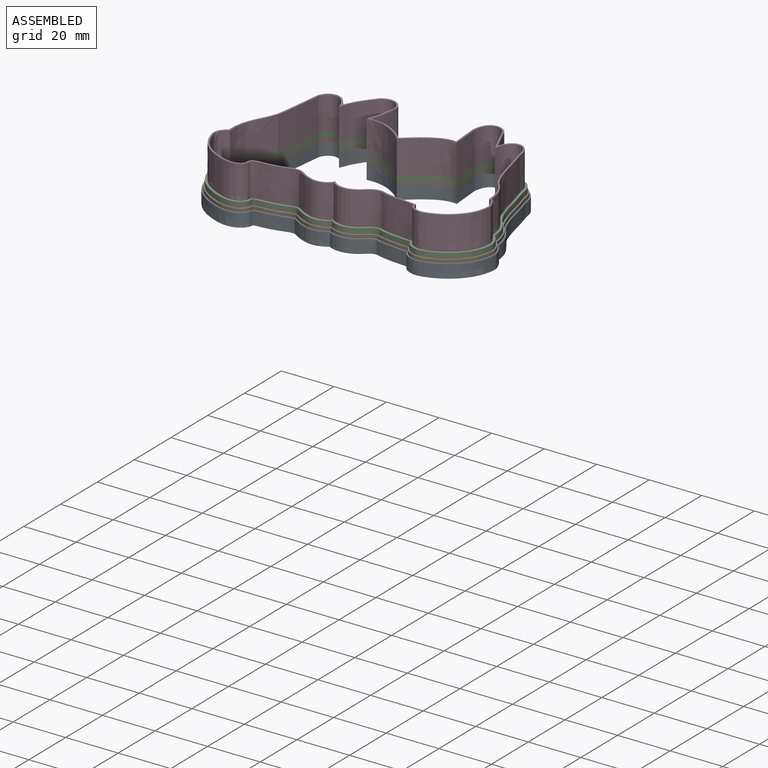
[diagram: assembled view]
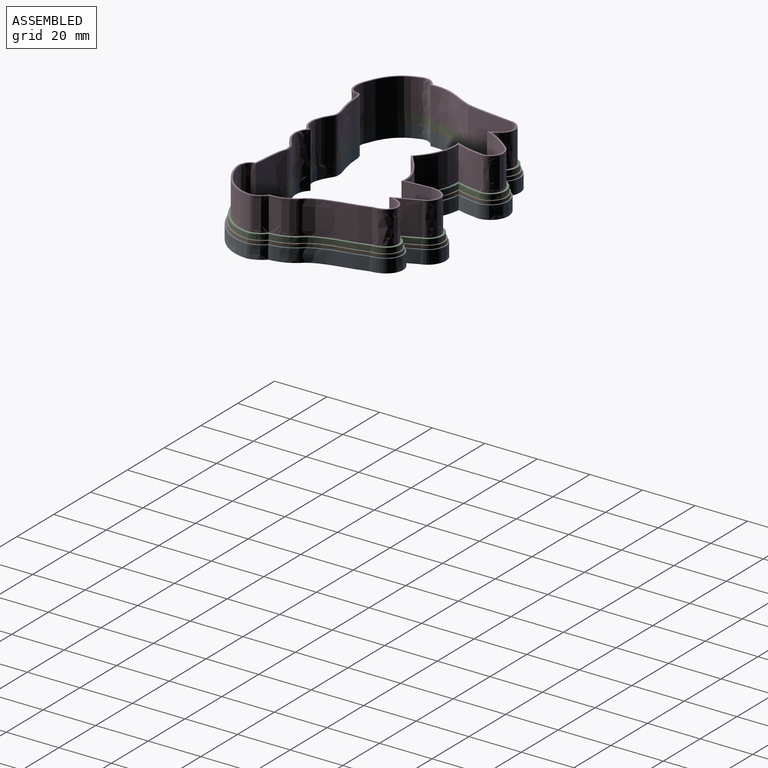
[diagram: assembled view, second angle]
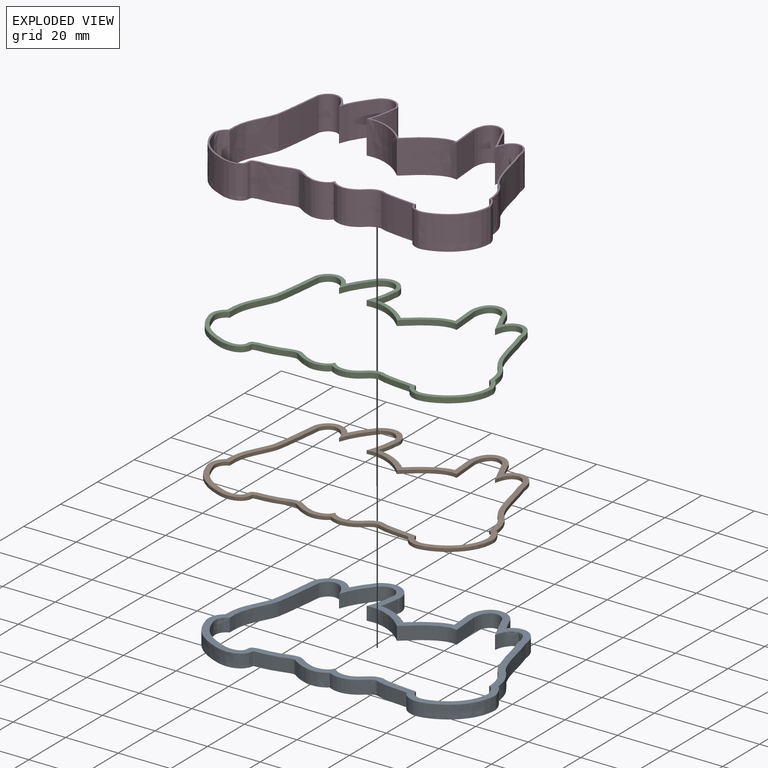
[diagram: exploded view]
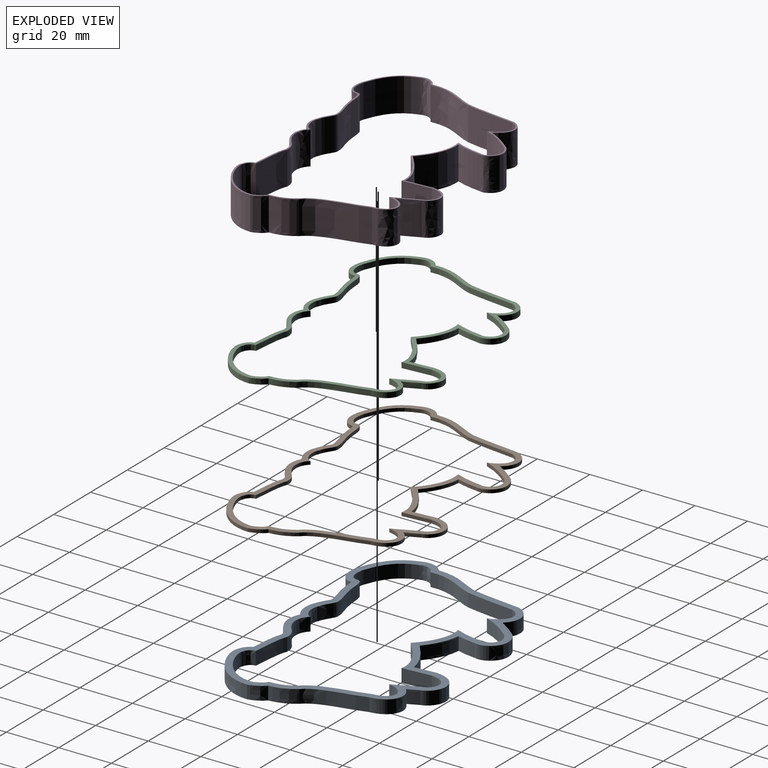
[diagram: exploded view, second angle]
ASSEMBLY  parts=4 mates=3
PART A: 58 faces, bbox 108.7x76.2x7.8 mm
  f0: plane 108.68x76.16mm, normal (0,0,1), area 876mm2, adj f2,f3,f4,f5,f6,f7,f8,f9
  f1: plane 108.68x76.16mm, normal (0,0,-1), area 876mm2, adj f2,f3,f4,f5,f6,f7,f8,f9
  f2: extruded ~17.57x5.77mm, area 95mm2, adj f0,f1,f3,f29
  f3: extruded ~8.54x5.08mm, area 48.2mm2, adj f0,f1,f2,f4
  f4: extruded ~14.42x13.29mm, area 104mm2, adj f0,f1,f3,f5
  f5: extruded ~10.38x5.08mm, area 65.7mm2, adj f0,f1,f4,f6
  f6: extruded ~5.08x0.55mm, area 2.9mm2, adj f0,f1,f5,f7
  f7: extruded ~13.59x5.08mm, area 70.3mm2, adj f0,f1,f6,f8
  f8: extruded ~5.45x5.08mm, area 31.2mm2, adj f0,f1,f7,f9
  f9: extruded ~9.1x5.08mm, area 48.8mm2, adj f0,f1,f8,f10
  f10: extruded ~9.98x5.08mm, area 53.4mm2, adj f0,f1,f9,f11
  f11: extruded ~5.36x5.08mm, area 32.1mm2, adj f0,f1,f10,f12
  f12: extruded ~12.6x5.08mm, area 64.9mm2, adj f0,f1,f11,f13
  f13: extruded ~5.08x3.83mm, area 26mm2, adj f0,f1,f12,f14
  f14: extruded ~20.07x17.85mm, area 151.4mm2, adj f0,f1,f13,f15
  f15: extruded ~5.87x5.08mm, area 34.1mm2, adj f0,f1,f14,f16
  f16: extruded ~9.46x5.08mm, area 52.2mm2, adj f0,f1,f15,f17
  f17: extruded ~21.38x7.51mm, area 116.3mm2, adj f0,f1,f16,f18
  f18: extruded ~11.44x7.99mm, area 85.8mm2, adj f0,f1,f17,f19
  f19: extruded ~5.08x4.25mm, area 23.7mm2, adj f0,f1,f18,f20
  f20: extruded ~13.46x8.31mm, area 105.9mm2, adj f0,f1,f19,f21
  f21: extruded ~8.24x5.08mm, area 42mm2, adj f0,f1,f20,f22
  f22: extruded ~14.06x7.58mm, area 82.3mm2, adj f0,f1,f21,f23
  f23: extruded ~12.67x5.94mm, area 72.3mm2, adj f0,f1,f22,f24
  f24: extruded ~7.04x5.08mm, area 36.5mm2, adj f0,f1,f23,f25
  f25: extruded ~12.03x8.2mm, area 90.4mm2, adj f0,f1,f24,f26
  f26: extruded ~7.73x5.56mm, area 48.5mm2, adj f0,f1,f25,f27
  f27: extruded ~5.08x0.03mm, area 0.2mm2, adj f0,f1,f26,f28
  f28: extruded ~11.92x5.08mm, area 76.1mm2, adj f0,f1,f27,f29
  f29: extruded ~18.63x5.08mm, area 95.5mm2, adj f0,f1,f2,f28
  f30: extruded ~18.3x5.69mm, area 98.7mm2, adj f0,f1,f31,f57
  f31: extruded ~6.3x5.08mm, area 38.1mm2, adj f0,f1,f30,f32
  f32: extruded ~12.8x11.75mm, area 92.2mm2, adj f0,f1,f31,f33
  f33: extruded ~7.07x5.08mm, area 42.3mm2, adj f0,f1,f32,f34
  f34: extruded ~5.08x2.67mm, area 21.2mm2, adj f0,f1,f33,f35
  f35: extruded ~13.75x5.08mm, area 71mm2, adj f0,f1,f34,f36
  f36: extruded ~6.63x5.08mm, area 37.3mm2, adj f0,f1,f35,f37
  f37: extruded ~7.71x5.08mm, area 45.5mm2, adj f0,f1,f36,f38
  f38: extruded ~9.1x5.08mm, area 50.8mm2, adj f0,f1,f37,f39
  f39: extruded ~7.22x5.08mm, area 41.9mm2, adj f0,f1,f38,f40
  f40: extruded ~14.04x5.08mm, area 72.3mm2, adj f0,f1,f39,f41
  f41: extruded ~5.08x3.07mm, area 22.6mm2, adj f0,f1,f40,f42
  f42: extruded ~16.62x15.1mm, area 125.5mm2, adj f0,f1,f41,f43
  f43: extruded ~5.08x4.55mm, area 28.7mm2, adj f0,f1,f42,f44
  f44: extruded ~9.3x5.08mm, area 50.6mm2, adj f0,f1,f43,f45
  f45: extruded ~22.55x8.11mm, area 123mm2, adj f0,f1,f44,f46
  f46: extruded ~8.9x5.97mm, area 82.7mm2, adj f0,f1,f45,f47
  f47: extruded ~9.62x5.08mm, area 53.6mm2, adj f0,f1,f46,f48
  f48: extruded ~8.51x5.79mm, area 70mm2, adj f0,f1,f47,f49
  f49: extruded ~10.96x5.08mm, area 55.9mm2, adj f0,f1,f48,f50
  f50: extruded ~16.91x8.54mm, area 99.1mm2, adj f0,f1,f49,f51
  f51: extruded ~16.22x6.91mm, area 92.8mm2, adj f0,f1,f50,f52
  f52: extruded ~10.29x5.08mm, area 54mm2, adj f0,f1,f51,f53
  f53: extruded ~7.71x5.09mm, area 57.2mm2, adj f0,f1,f52,f54
  f54: extruded ~11.67x7.12mm, area 69.9mm2, adj f0,f1,f53,f55
  f55: extruded ~5.08x4.15mm, area 24mm2, adj f0,f1,f54,f56
  f56: extruded ~7.52x5.08mm, area 48.3mm2, adj f0,f1,f55,f57
  f57: extruded ~18.59x5.08mm, area 95.3mm2, adj f0,f1,f30,f56
PART B: 59 faces, bbox 106.1x73.6x2.4 mm
  f0: plane 106.12x73.6mm, normal (0,0,1), area 700.6mm2, adj f2,f3,f4,f5,f6,f7,f8,f9
  f1: plane 106.12x73.6mm, normal (0,0,-1), area 700.6mm2, adj f2,f3,f4,f5,f6,f7,f8,f9
  f2: extruded ~1.27x0.36mm, area 0.5mm2, adj f0,f1,f6,f7
  f3: extruded ~17.69x5.75mm, area 23.9mm2, adj f0,f1,f4,f30
  f4: extruded ~8.11x2.72mm, area 11.6mm2, adj f0,f1,f3,f5
  f5: extruded ~14.09x12.98mm, area 25.4mm2, adj f0,f1,f4,f6
  f6: extruded ~9.72x4.45mm, area 15.3mm2, adj f0,f1,f2,f5
  f7: extruded ~1.27x0.96mm, area 1.3mm2, adj f0,f1,f2,f8
  f8: extruded ~13.49x2.26mm, area 17.4mm2, adj f0,f1,f7,f9
  f9: extruded ~5.8x2.85mm, area 8.4mm2, adj f0,f1,f8,f10
  f10: extruded ~8.86x1.99mm, area 12mm2, adj f0,f1,f9,f11
  f11: extruded ~9.77x1.6mm, area 13.1mm2, adj f0,f1,f10,f12
  f12: extruded ~5.73x3.18mm, area 8.5mm2, adj f0,f1,f11,f13
  f13: extruded ~12.85x1.91mm, area 16.5mm2, adj f0,f1,f12,f14
  f14: extruded ~3.66x3.15mm, area 6.4mm2, adj f0,f1,f13,f15
  f15: extruded ~19.38x17.3mm, area 36.6mm2, adj f0,f1,f14,f16
  f16: extruded ~5.66x3.06mm, area 8.3mm2, adj f0,f1,f15,f17
  f17: extruded ~9.38x3.48mm, area 12.9mm2, adj f0,f1,f16,f18
  f18: extruded ~21.61x7.63mm, area 29.4mm2, adj f0,f1,f17,f19
  f19: extruded ~11.07x7.59mm, area 21.1mm2, adj f0,f1,f18,f20
  f20: extruded ~5.05x2.27mm, area 7mm2, adj f0,f1,f19,f21
  f21: extruded ~12.47x7.81mm, area 24.7mm2, adj f0,f1,f20,f22
  f22: extruded ~8.71x1.27mm, area 11.1mm2, adj f0,f1,f21,f23
  f23: extruded ~14.62x7.79mm, area 21.4mm2, adj f0,f1,f22,f24
  f24: extruded ~13.33x6.15mm, area 19mm2, adj f0,f1,f23,f25
  f25: extruded ~7.61x1.52mm, area 9.9mm2, adj f0,f1,f24,f26
  f26: extruded ~11.17x7.59mm, area 20.9mm2, adj f0,f1,f25,f27
  f27: extruded ~8.27x5.83mm, area 12.9mm2, adj f0,f1,f26,f28
  f28: extruded ~1.27x0.61mm, area 1mm2, adj f0,f1,f27,f29
  f29: extruded ~11.04x4.59mm, area 17.7mm2, adj f0,f1,f28,f30
  f30: extruded ~18.62x2.46mm, area 23.9mm2, adj f0,f1,f3,f29
  f31: extruded ~18.3x5.69mm, area 24.7mm2, adj f0,f1,f32,f58
  f32: extruded ~6.3x2.77mm, area 9.5mm2, adj f0,f1,f31,f33
  f33: extruded ~12.8x11.75mm, area 23mm2, adj f0,f1,f32,f34
  f34: extruded ~7.07x2.54mm, area 10.6mm2, adj f0,f1,f33,f35
  f35: extruded ~2.67x2.47mm, area 5.3mm2, adj f0,f1,f34,f36
  f36: extruded ~13.75x2.28mm, area 17.8mm2, adj f0,f1,f35,f37
  f37: extruded ~6.63x2.98mm, area 9.3mm2, adj f0,f1,f36,f38
  f38: extruded ~7.71x2.92mm, area 11.4mm2, adj f0,f1,f37,f39
  f39: extruded ~9.1x2.19mm, area 12.7mm2, adj f0,f1,f38,f40
  f40: extruded ~7.22x3.49mm, area 10.5mm2, adj f0,f1,f39,f41
  f41: extruded ~14.04x2.08mm, area 18.1mm2, adj f0,f1,f40,f42
  f42: extruded ~3.07x2.77mm, area 5.6mm2, adj f0,f1,f41,f43
  f43: extruded ~16.62x15.1mm, area 31.4mm2, adj f0,f1,f42,f44
  f44: extruded ~4.55x2.97mm, area 7.2mm2, adj f0,f1,f43,f45
  f45: extruded ~9.3x3.07mm, area 12.6mm2, adj f0,f1,f44,f46
  f46: extruded ~22.55x8.11mm, area 30.8mm2, adj f0,f1,f45,f47
  f47: extruded ~8.9x5.97mm, area 20.7mm2, adj f0,f1,f46,f48
  f48: extruded ~9.62x4.35mm, area 13.4mm2, adj f0,f1,f47,f49
  f49: extruded ~8.51x5.79mm, area 17.5mm2, adj f0,f1,f48,f50
  f50: extruded ~10.96x1.27mm, area 14mm2, adj f0,f1,f49,f51
  f51: extruded ~16.91x8.54mm, area 24.8mm2, adj f0,f1,f50,f52
  f52: extruded ~16.22x6.91mm, area 23.2mm2, adj f0,f1,f51,f53
  f53: extruded ~10.29x2.47mm, area 13.5mm2, adj f0,f1,f52,f54
  f54: extruded ~7.71x5.09mm, area 14.3mm2, adj f0,f1,f53,f55
  f55: extruded ~11.67x7.12mm, area 17.5mm2, adj f0,f1,f54,f56
  f56: extruded ~4.15x2.18mm, area 6mm2, adj f0,f1,f55,f57
  f57: extruded ~7.52x3.09mm, area 12.1mm2, adj f0,f1,f56,f58
  f58: extruded ~18.59x2.47mm, area 23.8mm2, adj f0,f1,f31,f57
PART C: 59 faces, bbox 105.1x72.6x3.2 mm
  f0: plane 105.13x72.61mm, normal (0,0,1), area 525.6mm2, adj f2,f3,f4,f5,f6,f7,f8,f9
  f1: plane 105.13x72.61mm, normal (0,0,-1), area 525.6mm2, adj f2,f3,f4,f5,f6,f7,f8,f9
  f2: extruded ~2.03x0.72mm, area 1.5mm2, adj f0,f1,f6,f7
  f3: extruded ~17.82x5.74mm, area 38.5mm2, adj f0,f1,f4,f30
  f4: extruded ~7.68x2.72mm, area 17.7mm2, adj f0,f1,f3,f5
  f5: extruded ~13.77x12.67mm, area 39.7mm2, adj f0,f1,f4,f6
  f6: extruded ~9.06x3.97mm, area 22.5mm2, adj f0,f1,f2,f5
  f7: extruded ~2.03x1.34mm, area 2.8mm2, adj f0,f1,f2,f8
  f8: extruded ~13.55x2.27mm, area 28mm2, adj f0,f1,f7,f9
  f9: extruded ~6.01x2.88mm, area 13.6mm2, adj f0,f1,f8,f10
  f10: extruded ~8.61x2.13mm, area 18.8mm2, adj f0,f1,f9,f11
  f11: extruded ~9.57x2.03mm, area 20.6mm2, adj f0,f1,f10,f12
  f12: extruded ~6.09x3.26mm, area 14.4mm2, adj f0,f1,f11,f13
  f13: extruded ~13.11x2.03mm, area 27mm2, adj f0,f1,f12,f14
  f14: extruded ~3.47x3.14mm, area 9.9mm2, adj f0,f1,f13,f15
  f15: extruded ~18.7x16.75mm, area 56.4mm2, adj f0,f1,f14,f16
  f16: extruded ~5.43x3.04mm, area 12.9mm2, adj f0,f1,f15,f17
  f17: extruded ~9.31x3.38mm, area 20.4mm2, adj f0,f1,f16,f18
  f18: extruded ~21.84x7.75mm, area 47.6mm2, adj f0,f1,f17,f19
  f19: extruded ~10.65x7.18mm, area 33.3mm2, adj f0,f1,f18,f20
  f20: extruded ~5.97x2.66mm, area 13.3mm2, adj f0,f1,f19,f21
  f21: extruded ~11.48x7.3mm, area 36.6mm2, adj f0,f1,f20,f22
  f22: extruded ~9.21x2.03mm, area 18.8mm2, adj f0,f1,f21,f23
  f23: extruded ~15.18x7.97mm, area 35.5mm2, adj f0,f1,f22,f24
  f24: extruded ~14.01x6.34mm, area 32mm2, adj f0,f1,f23,f25
  f25: extruded ~8.21x2.03mm, area 17.1mm2, adj f0,f1,f24,f26
  f26: extruded ~10.3x6.98mm, area 30.8mm2, adj f0,f1,f25,f27
  f27: extruded ~8.89x6.12mm, area 22mm2, adj f0,f1,f26,f28
  f28: extruded ~2.03x1.27mm, area 3.2mm2, adj f0,f1,f27,f29
  f29: extruded ~10.16x4.21mm, area 26.1mm2, adj f0,f1,f28,f30
  f30: extruded ~18.61x2.47mm, area 38.2mm2, adj f0,f1,f3,f29
  f31: extruded ~18.3x5.69mm, area 39.5mm2, adj f0,f1,f32,f58
  f32: extruded ~6.3x2.77mm, area 15.3mm2, adj f0,f1,f31,f33
  f33: extruded ~12.8x11.75mm, area 36.9mm2, adj f0,f1,f32,f34
  f34: extruded ~7.07x2.54mm, area 16.9mm2, adj f0,f1,f33,f35
  f35: extruded ~2.67x2.47mm, area 8.5mm2, adj f0,f1,f34,f36
  f36: extruded ~13.75x2.28mm, area 28.4mm2, adj f0,f1,f35,f37
  f37: extruded ~6.63x2.98mm, area 14.9mm2, adj f0,f1,f36,f38
  f38: extruded ~7.71x2.92mm, area 18.2mm2, adj f0,f1,f37,f39
  f39: extruded ~9.1x2.19mm, area 20.3mm2, adj f0,f1,f38,f40
  f40: extruded ~7.22x3.49mm, area 16.8mm2, adj f0,f1,f39,f41
  f41: extruded ~14.04x2.08mm, area 28.9mm2, adj f0,f1,f40,f42
  f42: extruded ~3.07x2.77mm, area 9mm2, adj f0,f1,f41,f43
  f43: extruded ~16.62x15.1mm, area 50.2mm2, adj f0,f1,f42,f44
  f44: extruded ~4.55x2.97mm, area 11.5mm2, adj f0,f1,f43,f45
  f45: extruded ~9.3x3.07mm, area 20.2mm2, adj f0,f1,f44,f46
  f46: extruded ~22.55x8.11mm, area 49.2mm2, adj f0,f1,f45,f47
  f47: extruded ~8.9x5.97mm, area 33.1mm2, adj f0,f1,f46,f48
  f48: extruded ~9.62x4.35mm, area 21.5mm2, adj f0,f1,f47,f49
  f49: extruded ~8.51x5.79mm, area 28mm2, adj f0,f1,f48,f50
  f50: extruded ~10.96x2.03mm, area 22.3mm2, adj f0,f1,f49,f51
  f51: extruded ~16.91x8.54mm, area 39.6mm2, adj f0,f1,f50,f52
  f52: extruded ~16.22x6.91mm, area 37.1mm2, adj f0,f1,f51,f53
  f53: extruded ~10.29x2.47mm, area 21.6mm2, adj f0,f1,f52,f54
  f54: extruded ~7.71x5.09mm, area 22.9mm2, adj f0,f1,f53,f55
  f55: extruded ~11.67x7.12mm, area 28mm2, adj f0,f1,f54,f56
  f56: extruded ~4.15x2.18mm, area 9.6mm2, adj f0,f1,f55,f57
  f57: extruded ~7.52x3.09mm, area 19.3mm2, adj f0,f1,f56,f58
  f58: extruded ~18.59x2.47mm, area 38.1mm2, adj f0,f1,f31,f57
PART D: 58 faces, bbox 107.7x75.8x18.3 mm
  f0: plane 107.74x75.83mm, normal (0,0,1), area 219.6mm2, adj f2,f3,f4,f5,f6,f7,f8,f9
  f1: plane 107.74x75.83mm, normal (0,0,-1), area 219.6mm2, adj f2,f3,f4,f5,f6,f7,f8,f9
  f2: extruded ~18.08x12.7mm, area 243.9mm2, adj f0,f1,f3,f29
  f3: extruded ~12.7x6.89mm, area 101.8mm2, adj f0,f1,f2,f4
  f4: extruded ~13.2x12.7mm, area 237.8mm2, adj f0,f1,f3,f5
  f5: extruded ~12.7x7.9mm, area 120.2mm2, adj f0,f1,f4,f6
  f6: extruded ~12.7x2.14mm, area 42.1mm2, adj f0,f1,f5,f7
  f7: extruded ~13.66x12.7mm, area 176.6mm2, adj f0,f1,f6,f8
  f8: extruded ~12.7x6.36mm, area 90mm2, adj f0,f1,f7,f9
  f9: extruded ~12.7x8.13mm, area 114.5mm2, adj f0,f1,f8,f10
  f10: extruded ~12.7x9.25mm, area 126.5mm2, adj f0,f1,f9,f11
  f11: extruded ~12.7x6.75mm, area 98.6mm2, adj f0,f1,f10,f12
  f12: extruded ~13.63x12.7mm, area 175.4mm2, adj f0,f1,f11,f13
  f13: extruded ~12.7x3.1mm, area 58.8mm2, adj f0,f1,f12,f14
  f14: extruded ~17.49x15.79mm, area 330.2mm2, adj f0,f1,f13,f15
  f15: extruded ~12.7x4.97mm, area 75.8mm2, adj f0,f1,f14,f16
  f16: extruded ~12.7x9.24mm, area 126.2mm2, adj f0,f1,f15,f17
  f17: extruded ~22.25x12.7mm, area 303.3mm2, adj f0,f1,f16,f18
  f18: extruded ~12.7x9.75mm, area 205.5mm2, adj f0,f1,f17,f19
  f19: extruded ~12.7x7.91mm, area 110.1mm2, adj f0,f1,f18,f20
  f20: extruded ~12.7x9.75mm, area 197.5mm2, adj f0,f1,f19,f21
  f21: extruded ~12.7x10.17mm, area 129.5mm2, adj f0,f1,f20,f22
  f22: extruded ~16.18x12.7mm, area 236.7mm2, adj f0,f1,f21,f23
  f23: extruded ~15.25x12.7mm, area 217.9mm2, adj f0,f1,f22,f24
  f24: extruded ~12.7x9.36mm, area 122.2mm2, adj f0,f1,f23,f25
  f25: extruded ~12.7x8.79mm, area 163.9mm2, adj f0,f1,f24,f26
  f26: extruded ~12.7x10.26mm, area 156mm2, adj f0,f1,f25,f27
  f27: extruded ~12.7x2.7mm, area 40.7mm2, adj f0,f1,f26,f28
  f28: extruded ~12.7x8.62mm, area 138.3mm2, adj f0,f1,f27,f29
  f29: extruded ~18.6x12.7mm, area 238.4mm2, adj f0,f1,f2,f28
  f30: extruded ~18.3x12.7mm, area 246.6mm2, adj f0,f1,f31,f57
  f31: extruded ~12.7x6.3mm, area 95.4mm2, adj f0,f1,f30,f32
  f32: extruded ~12.8x12.7mm, area 230.4mm2, adj f0,f1,f31,f33
  f33: extruded ~12.7x7.07mm, area 105.7mm2, adj f0,f1,f32,f34
  f34: extruded ~12.7x2.67mm, area 52.9mm2, adj f0,f1,f33,f35
  f35: extruded ~13.75x12.7mm, area 177.6mm2, adj f0,f1,f34,f36
  f36: extruded ~12.7x6.63mm, area 93.3mm2, adj f0,f1,f35,f37
  f37: extruded ~12.7x7.71mm, area 113.7mm2, adj f0,f1,f36,f38
  f38: extruded ~12.7x9.1mm, area 126.9mm2, adj f0,f1,f37,f39
  f39: extruded ~12.7x7.22mm, area 104.8mm2, adj f0,f1,f38,f40
  f40: extruded ~14.04x12.7mm, area 180.8mm2, adj f0,f1,f39,f41
  f41: extruded ~12.7x3.07mm, area 56.4mm2, adj f0,f1,f40,f42
  f42: extruded ~16.62x15.1mm, area 313.8mm2, adj f0,f1,f41,f43
  f43: extruded ~12.7x4.55mm, area 71.7mm2, adj f0,f1,f42,f44
  f44: extruded ~12.7x9.3mm, area 126.5mm2, adj f0,f1,f43,f45
  f45: extruded ~22.55x12.7mm, area 307.6mm2, adj f0,f1,f44,f46
  f46: extruded ~12.7x8.9mm, area 206.8mm2, adj f0,f1,f45,f47
  f47: extruded ~12.7x9.62mm, area 134.1mm2, adj f0,f1,f46,f48
  f48: extruded ~12.7x8.51mm, area 175mm2, adj f0,f1,f47,f49
  f49: extruded ~12.7x10.96mm, area 139.7mm2, adj f0,f1,f48,f50
  f50: extruded ~16.91x12.7mm, area 247.8mm2, adj f0,f1,f49,f51
  f51: extruded ~16.22x12.7mm, area 232mm2, adj f0,f1,f50,f52
  f52: extruded ~12.7x10.29mm, area 134.9mm2, adj f0,f1,f51,f53
  f53: extruded ~12.7x7.71mm, area 142.9mm2, adj f0,f1,f52,f54
  f54: extruded ~12.7x11.67mm, area 174.7mm2, adj f0,f1,f53,f55
  f55: extruded ~12.7x4.15mm, area 60.1mm2, adj f0,f1,f54,f56
  f56: extruded ~12.7x7.52mm, area 120.9mm2, adj f0,f1,f55,f57
  f57: extruded ~18.59x12.7mm, area 238.3mm2, adj f0,f1,f30,f56
PLACE A t=(249.99,-44.6,-6.35)mm
PLACE B t=(268.47,44.97,-1.27)mm
PLACE C at identity
PLACE D t=(129.33,1.04,2.03)mm
MATE fastened B.f0 <-> C.f1  axis (0,0,1) through (155,26.2,0)mm
MATE fastened A.f0 <-> B.f1  axis (0,0,1) through (175.07,-5.65,-1.27)mm
MATE fastened D.f1 <-> C.f0  axis (0,0,1) through (155,26.2,2.03)mm
